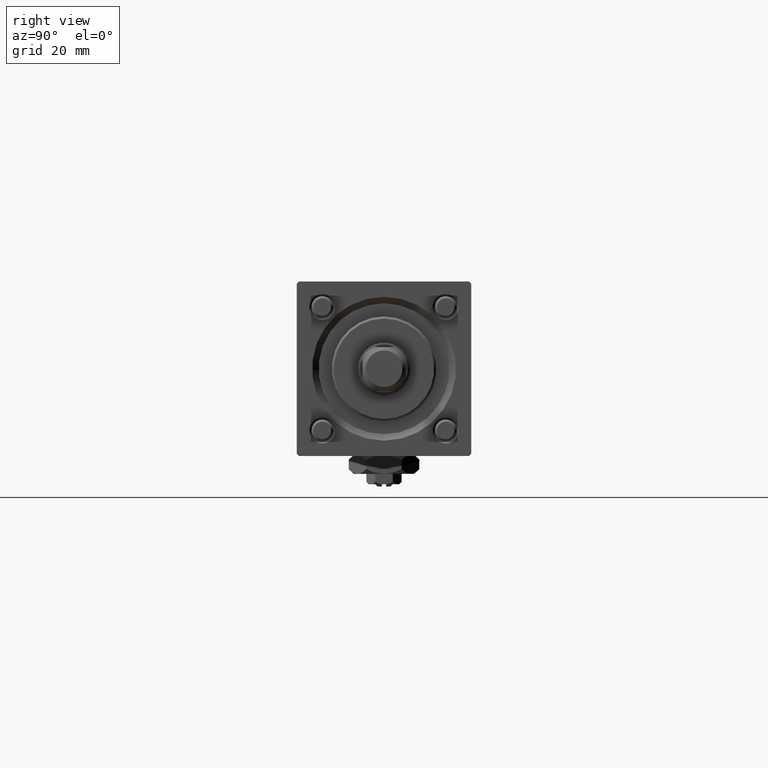
[diagram: clean part render]
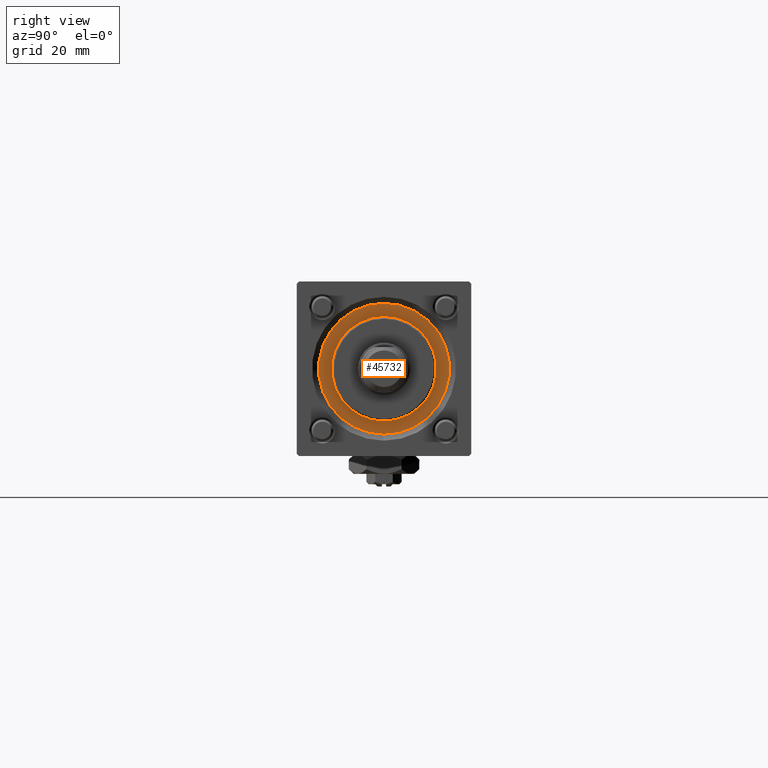
[diagram: same view with one face highlighted and labeled with its STEP entity id]
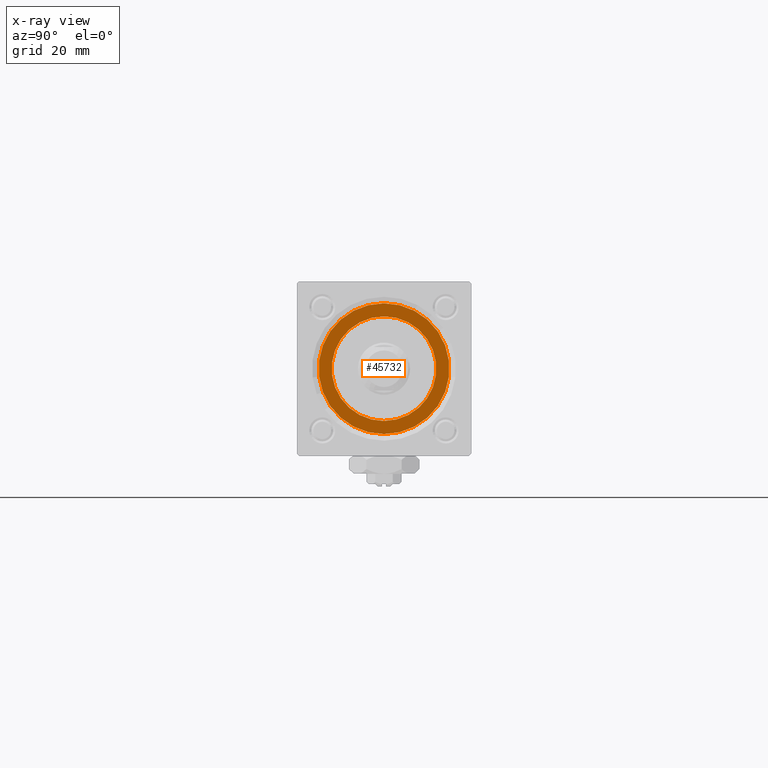
[diagram: x-ray of the same camera — body ghosted, the highlighted face saturated]
A machine part, right view. The second image highlights one B-rep face of the part: STEP entity #45732.
The next image is the same camera in x-ray: the body ghosted, the highlighted face saturated — about 0% of this face is hidden behind the body in this view.
In plain terms, the highlighted planar face has unit normal (1, 0, 0).
Its self-contained STEP definition (entity closure, byte-faithful):
#1168 = DIRECTION ( 'NONE',  ( 0.000000000000000000, 0.000000000000000000, 1.000000000000000000 ) ) ;
#1586 = DIRECTION ( 'NONE',  ( 0.000000000000000000, 0.000000000000000000, 1.000000000000000000 ) ) ;
#3198 = CARTESIAN_POINT ( 'NONE',  ( 0.000000000000000000, 0.000000000000000000, 28.69999999999999929 ) ) ;
#4446 = CARTESIAN_POINT ( 'NONE',  ( 0.000000000000000000, 0.000000000000000000, 28.69999999999999929 ) ) ;
#5780 = FACE_OUTER_BOUND ( 'NONE', #51606, .T. ) ;
#6669 = AXIS2_PLACEMENT_3D ( 'NONE', #56574, #15772, #52083 ) ;
#7373 = ORIENTED_EDGE ( 'NONE', *, *, #33010, .F. ) ;
#7602 = CIRCLE ( 'NONE', #41851, 15.00000000000000000 ) ;
#8749 = CARTESIAN_POINT ( 'NONE',  ( 0.000000000000000000, 0.000000000000000000, 28.69999999999999929 ) ) ;
#9002 = VERTEX_POINT ( 'NONE', #49699 ) ;
#13506 = DIRECTION ( 'NONE',  ( 0.000000000000000000, 0.000000000000000000, 1.000000000000000000 ) ) ;
#13953 = VERTEX_POINT ( 'NONE', #27565 ) ;
#15010 = CARTESIAN_POINT ( 'NONE',  ( 0.000000000000000000, 0.000000000000000000, 28.69999999999999929 ) ) ;
#15772 = DIRECTION ( 'NONE',  ( 0.000000000000000000, 0.000000000000000000, 1.000000000000000000 ) ) ;
#16281 = DIRECTION ( 'NONE',  ( 1.000000000000000000, 0.000000000000000000, 0.000000000000000000 ) ) ;
#17885 = AXIS2_PLACEMENT_3D ( 'NONE', #15010, #1586, #42115 ) ;
#20453 = ORIENTED_EDGE ( 'NONE', *, *, #33425, .T. ) ;
#21395 = DIRECTION ( 'NONE',  ( 0.000000000000000000, 0.000000000000000000, 1.000000000000000000 ) ) ;
#21689 = CIRCLE ( 'NONE', #52093, 12.00000000000000178 ) ;
#21822 = EDGE_CURVE ( 'NONE', #9002, #35538, #25483, .T. ) ;
#23968 = PLANE ( 'NONE',  #17885 ) ;
#25483 = CIRCLE ( 'NONE', #57811, 15.00000000000000000 ) ;
#25761 = CARTESIAN_POINT ( 'NONE',  ( -15.00000000000000000, 0.000000000000000000, 28.69999999999999929 ) ) ;
#27565 = CARTESIAN_POINT ( 'NONE',  ( -12.00000000000000178, 0.000000000000000000, 28.69999999999999929 ) ) ;
#30818 = DIRECTION ( 'NONE',  ( 1.000000000000000000, 0.000000000000000000, 0.000000000000000000 ) ) ;
#33010 = EDGE_CURVE ( 'NONE', #52843, #13953, #54225, .T. ) ;
#33425 = EDGE_CURVE ( 'NONE', #35538, #9002, #7602, .T. ) ;
#35468 = ORIENTED_EDGE ( 'NONE', *, *, #21822, .T. ) ;
#35538 = VERTEX_POINT ( 'NONE', #25761 ) ;
#35680 = ORIENTED_EDGE ( 'NONE', *, *, #44935, .F. ) ;
#39542 = DIRECTION ( 'NONE',  ( 1.000000000000000000, 0.000000000000000000, 0.000000000000000000 ) ) ;
#40049 = CARTESIAN_POINT ( 'NONE',  ( 12.00000000000000178, 1.469576158976824144E-15, 28.69999999999999929 ) ) ;
#41489 = EDGE_LOOP ( 'NONE', ( #35680, #7373 ) ) ;
#41851 = AXIS2_PLACEMENT_3D ( 'NONE', #8749, #13506, #30818 ) ;
#42115 = DIRECTION ( 'NONE',  ( 1.000000000000000000, 0.000000000000000000, -0.000000000000000000 ) ) ;
#44935 = EDGE_CURVE ( 'NONE', #13953, #52843, #21689, .T. ) ;
#45732 = ADVANCED_FACE ( 'NONE', ( #46564, #5780 ), #23968, .T. ) ;
#46564 = FACE_BOUND ( 'NONE', #41489, .T. ) ;
#49699 = CARTESIAN_POINT ( 'NONE',  ( 15.00000000000000000, 1.836970198721029589E-15, 28.69999999999999929 ) ) ;
#51606 = EDGE_LOOP ( 'NONE', ( #20453, #35468 ) ) ;
#52083 = DIRECTION ( 'NONE',  ( 1.000000000000000000, 0.000000000000000000, 0.000000000000000000 ) ) ;
#52093 = AXIS2_PLACEMENT_3D ( 'NONE', #4446, #1168, #16281 ) ;
#52843 = VERTEX_POINT ( 'NONE', #40049 ) ;
#54225 = CIRCLE ( 'NONE', #6669, 12.00000000000000178 ) ;
#56574 = CARTESIAN_POINT ( 'NONE',  ( 0.000000000000000000, 0.000000000000000000, 28.69999999999999929 ) ) ;
#57811 = AXIS2_PLACEMENT_3D ( 'NONE', #3198, #21395, #39542 ) ;